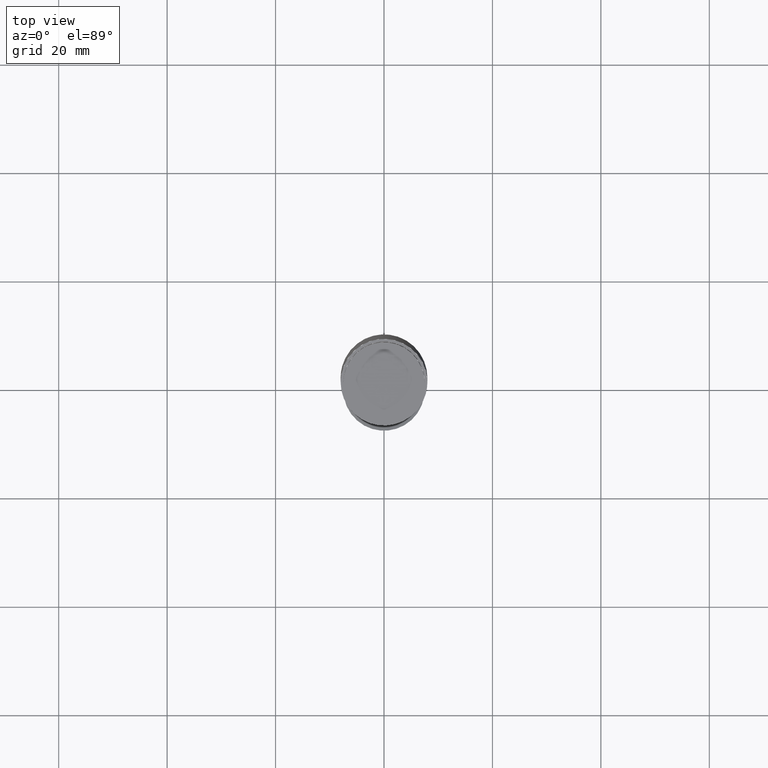
[diagram: clean part render]
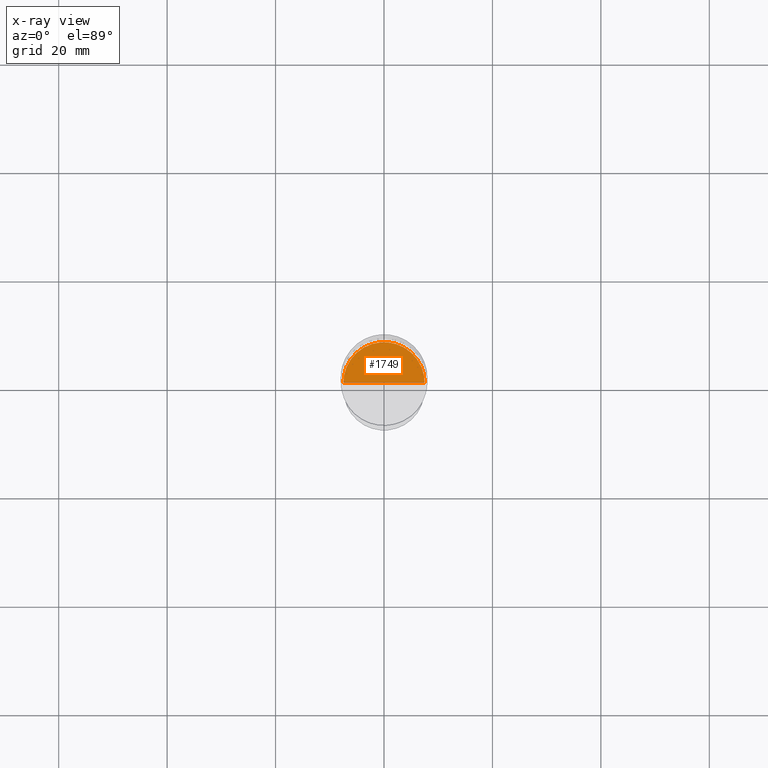
[diagram: x-ray — body ghosted, one internal face saturated and labeled with its STEP entity id]
A machine part, top view, then the same camera in x-ray: the body is ghosted and one INTERNAL B-rep face — a face not visible from any outside direction — is saturated and labeled: STEP entity #1749.
In plain terms, the highlighted face is a freeform B-spline surface patch.
Its self-contained STEP definition (entity closure, byte-faithful):
#1568=CARTESIAN_POINT('',(7.5,0.0,-7.0));
#1569=CARTESIAN_POINT('',(7.5,7.5,-7.0));
#1570=CARTESIAN_POINT('',(0.0,7.5,-7.0));
#1571=CARTESIAN_POINT('',(-7.5,7.5,-7.0));
#1572=CARTESIAN_POINT('',(-7.5,0.0,-7.0));
#1573=CARTESIAN_POINT('',(0.0,0.0,-7.0));
#1734=(
BOUNDED_SURFACE()
B_SPLINE_SURFACE(1,2,(
(#1573,#1573,#1573,#1573,#1573),
(#1568,#1569,#1570,#1571,#1572)
), .UNSPECIFIED.,.F.,.F.,.F.)
B_SPLINE_SURFACE_WITH_KNOTS((2,2),(3,2,3),(
0.0,1.0),(
0.0,0.5,1.0), .UNSPECIFIED.)
GEOMETRIC_REPRESENTATION_ITEM()
RATIONAL_B_SPLINE_SURFACE(((1.0,0.707106781187,1.0,0.707106781187,1.0),
(1.0,0.707106781187,1.0,0.707106781187,1.0)
))
REPRESENTATION_ITEM('')
SURFACE()
);
#1735=(
BOUNDED_CURVE()
B_SPLINE_CURVE(1,(#1572,#1573),.UNSPECIFIED.,.F.,.F.)
B_SPLINE_CURVE_WITH_KNOTS((2,2),
(0.0,1.0),.UNSPECIFIED.)
CURVE()
GEOMETRIC_REPRESENTATION_ITEM()
RATIONAL_B_SPLINE_CURVE((1.0,1.0))
REPRESENTATION_ITEM('')
);
#1736=(
BOUNDED_CURVE()
B_SPLINE_CURVE(1,(#1573,#1568),.UNSPECIFIED.,.F.,.F.)
B_SPLINE_CURVE_WITH_KNOTS((2,2),
(0.0,1.0),.UNSPECIFIED.)
CURVE()
GEOMETRIC_REPRESENTATION_ITEM()
RATIONAL_B_SPLINE_CURVE((1.0,1.0))
REPRESENTATION_ITEM('')
);
#1737=(
BOUNDED_CURVE()
B_SPLINE_CURVE(2,(#1568,#1569,#1570,#1571,#1572),.UNSPECIFIED.,.F.,.F.)
B_SPLINE_CURVE_WITH_KNOTS((3,2,3),
(0.0,0.5,1.0),.UNSPECIFIED.)
CURVE()
GEOMETRIC_REPRESENTATION_ITEM()
RATIONAL_B_SPLINE_CURVE((1.0,0.707106781187,1.0,0.707106781187,1.0))
REPRESENTATION_ITEM('')
);
#1738=VERTEX_POINT('',#1568);
#1739=VERTEX_POINT('',#1572);
#1740=VERTEX_POINT('',#1573);
#1741=EDGE_CURVE('',#1739,#1740,#1735,.T.);
#1742=EDGE_CURVE('',#1740,#1738,#1736,.T.);
#1743=EDGE_CURVE('',#1738,#1739,#1737,.T.);
#1744=ORIENTED_EDGE('',*,*,#1741,.T.);
#1745=ORIENTED_EDGE('',*,*,#1742,.T.);
#1746=ORIENTED_EDGE('',*,*,#1743,.T.);
#1747=EDGE_LOOP('',(#1744,#1745,#1746));
#1748=FACE_OUTER_BOUND('',#1747,.T.);
#1749=ADVANCED_FACE('',(#1748),#1734,.T.);